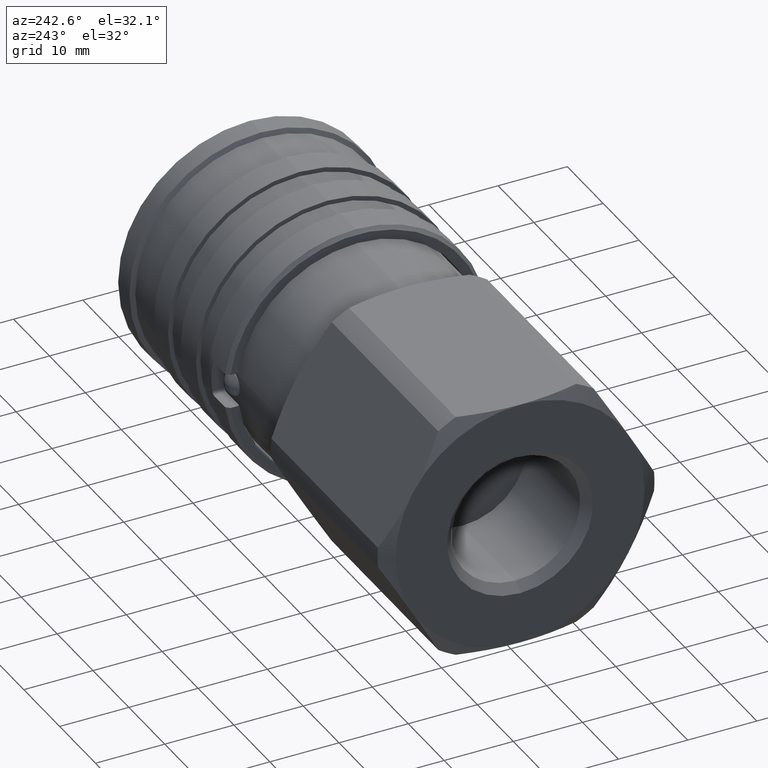
[diagram: clean part render]
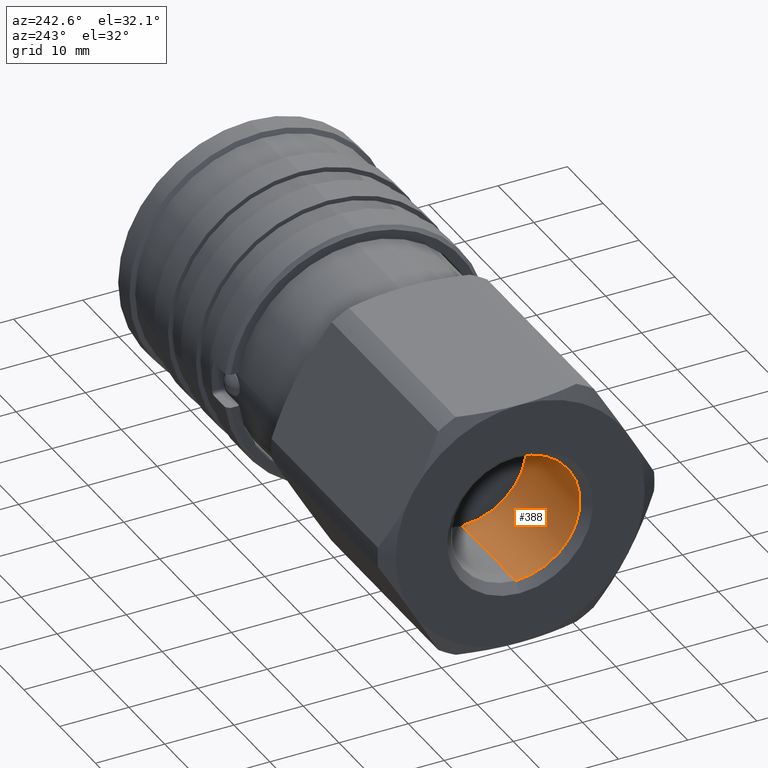
[diagram: same view with one face highlighted and labeled with its STEP entity id]
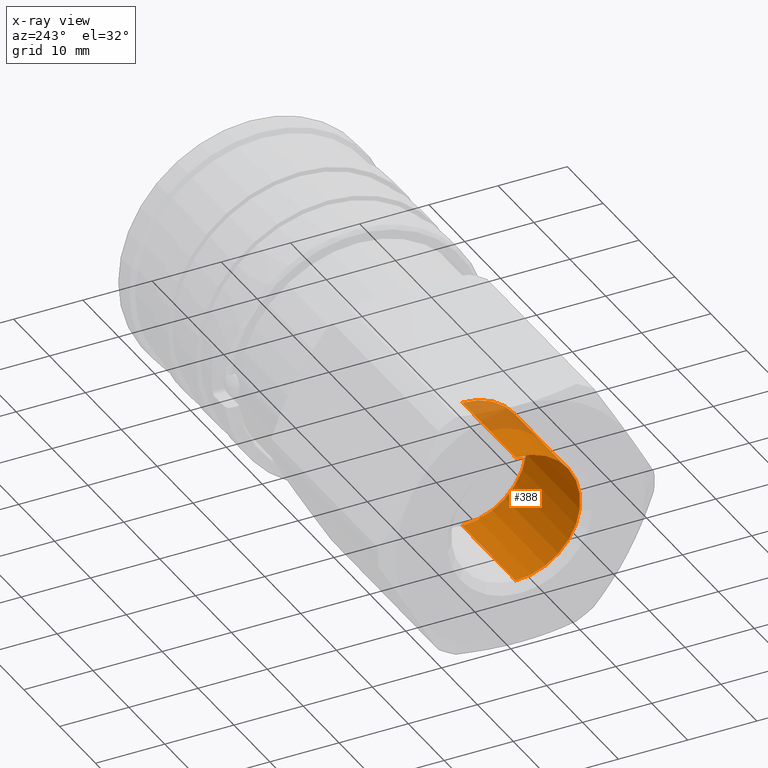
[diagram: x-ray of the same camera — body ghosted, the highlighted face saturated]
A machine part, auxiliary view. The second image highlights one B-rep face of the part: STEP entity #388.
The next image is the same camera in x-ray: the body ghosted, the highlighted face saturated — about 11% of this face is hidden behind the body in this view.
In plain terms, the highlighted cylindrical surface (partial cylindrical patch) has radius 9.3155 mm, axis along (1, -0, -0).
Its self-contained STEP definition (entity closure, byte-faithful):
#89 = EDGE_CURVE ( 'NONE', #1852, #1893, #460, .T. ) ;
#116 = EDGE_CURVE ( 'NONE', #1893, #1734, #490, .T. ) ;
#153 = EDGE_LOOP ( 'NONE', ( #2582, #2553, #2303, #2294 ) ) ;
#388 = ADVANCED_FACE ( 'NONE', ( #505 ), #506, .F. ) ;
#446 = DIRECTION ( 'NONE',  ( 9.310952047538015200E-017, 1.000000000000000000, 0.0000000000000000000 ) ) ;
#447 = DIRECTION ( 'NONE',  ( -1.000000000000000000, 1.172548684605769100E-016, -0.0000000000000000000 ) ) ;
#448 = CARTESIAN_POINT ( 'NONE',  ( -6.468432842341186100, 0.0000000000000000000, 0.0000000000000000000 ) ) ;
#460 = CIRCLE ( 'NONE', #2603, 9.315499999999996600 ) ;
#490 = LINE ( 'NONE', #1507, #491 ) ;
#491 = VECTOR ( 'NONE', #1386, 1000.000000000000000 ) ;
#505 = FACE_OUTER_BOUND ( 'NONE', #153, .T. ) ;
#506 = CYLINDRICAL_SURFACE ( 'NONE', #777, 9.315499999999996600 ) ;
#695 = CIRCLE ( 'NONE', #3846, 9.315499999999996600 ) ;
#777 = AXIS2_PLACEMENT_3D ( 'NONE', #1567, #1380, #1447 ) ;
#889 = EDGE_CURVE ( 'NONE', #1734, #1904, #695, .T. ) ;
#969 = EDGE_CURVE ( 'NONE', #1852, #1904, #2212, .T. ) ;
#1380 = DIRECTION ( 'NONE',  ( 1.000000000000000000, -0.0000000000000000000, -0.0000000000000000000 ) ) ;
#1386 = DIRECTION ( 'NONE',  ( 1.000000000000000000, -0.0000000000000000000, -0.0000000000000000000 ) ) ;
#1447 = DIRECTION ( 'NONE',  ( 0.0000000000000000000, 0.0000000000000000000, -1.000000000000000000 ) ) ;
#1507 = CARTESIAN_POINT ( 'NONE',  ( 9.400000000000002100, 0.0000000000000000000, -9.315499999999996600 ) ) ;
#1567 = CARTESIAN_POINT ( 'NONE',  ( 9.400000000000002100, 0.0000000000000000000, 0.0000000000000000000 ) ) ;
#1734 = VERTEX_POINT ( 'NONE', #3022 ) ;
#1780 = CARTESIAN_POINT ( 'NONE',  ( -21.36550000000000100, 0.0000000000000000000, 0.0000000000000000000 ) ) ;
#1839 = DIRECTION ( 'NONE',  ( 1.000000000000000000, -0.0000000000000000000, -0.0000000000000000000 ) ) ;
#1852 = VERTEX_POINT ( 'NONE', #3100 ) ;
#1893 = VERTEX_POINT ( 'NONE', #3119 ) ;
#1904 = VERTEX_POINT ( 'NONE', #3128 ) ;
#1907 = DIRECTION ( 'NONE',  ( 0.0000000000000000000, 0.0000000000000000000, -1.000000000000000000 ) ) ;
#2212 = LINE ( 'NONE', #2636, #2214 ) ;
#2214 = VECTOR ( 'NONE', #2637, 1000.000000000000000 ) ;
#2294 = ORIENTED_EDGE ( 'NONE', *, *, #116, .F. ) ;
#2303 = ORIENTED_EDGE ( 'NONE', *, *, #889, .F. ) ;
#2553 = ORIENTED_EDGE ( 'NONE', *, *, #969, .T. ) ;
#2582 = ORIENTED_EDGE ( 'NONE', *, *, #89, .F. ) ;
#2603 = AXIS2_PLACEMENT_3D ( 'NONE', #1780, #1839, #1907 ) ;
#2636 = CARTESIAN_POINT ( 'NONE',  ( 9.400000000000002100, 1.140819725745716600E-015, 9.315499999999996600 ) ) ;
#2637 = DIRECTION ( 'NONE',  ( 1.000000000000000000, -0.0000000000000000000, -0.0000000000000000000 ) ) ;
#3022 = CARTESIAN_POINT ( 'NONE',  ( -6.468432842341186100, 0.0000000000000000000, -9.315499999999996600 ) ) ;
#3100 = CARTESIAN_POINT ( 'NONE',  ( -21.36550000000000100, 1.140819725745716600E-015, 9.315499999999996600 ) ) ;
#3119 = CARTESIAN_POINT ( 'NONE',  ( -21.36550000000000100, 0.0000000000000000000, -9.315499999999996600 ) ) ;
#3128 = CARTESIAN_POINT ( 'NONE',  ( -6.468432842341186100, 1.140819725745716600E-015, 9.315499999999996600 ) ) ;
#3846 = AXIS2_PLACEMENT_3D ( 'NONE', #448, #447, #446 ) ;